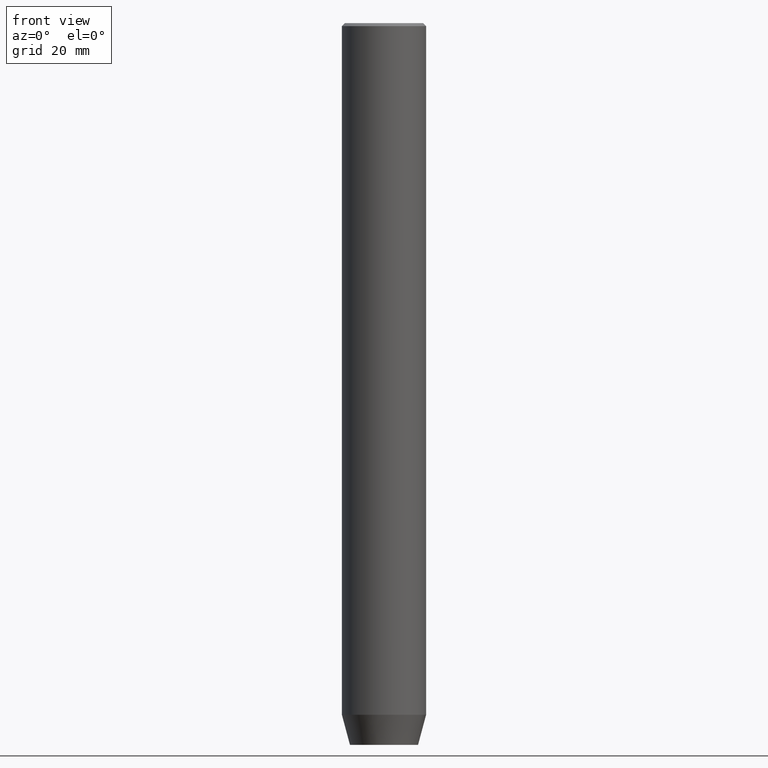
[diagram: clean part render]
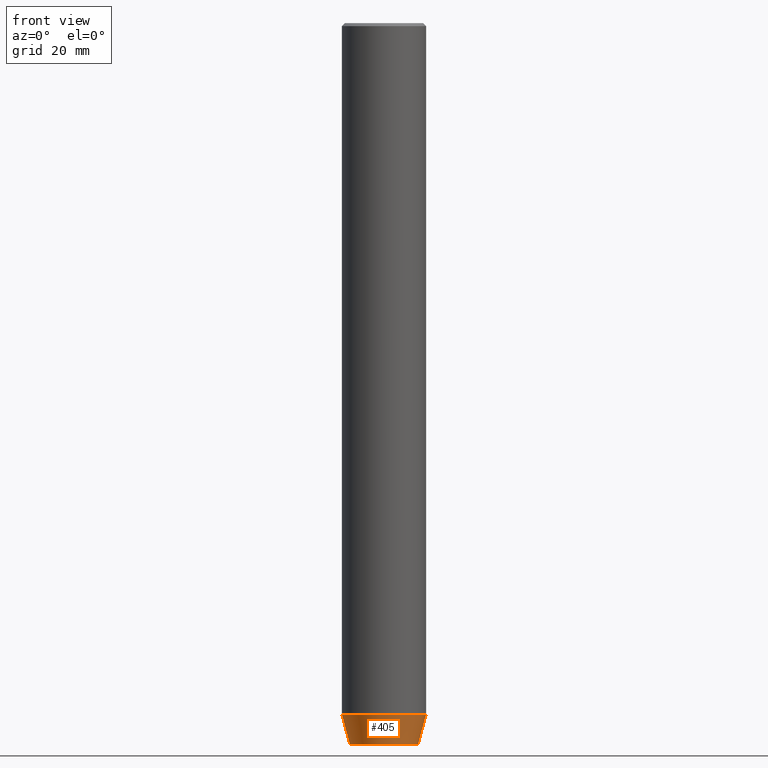
[diagram: same view with one face highlighted and labeled with its STEP entity id]
A machine part, front view. The second image highlights one B-rep face of the part: STEP entity #405.
In plain terms, the highlighted conical surface has half-angle 15 deg.
Its self-contained STEP definition (entity closure, byte-faithful):
#17 = CARTESIAN_POINT ( 'NONE',  ( 5.660254037844382857, 0.000000000000000000, -120.0000000000000000 ) ) ;
#36 = VERTEX_POINT ( 'NONE', #515 ) ;
#38 = VERTEX_POINT ( 'NONE', #381 ) ;
#44 = ORIENTED_EDGE ( 'NONE', *, *, #180, .F. ) ;
#45 = DIRECTION ( 'NONE',  ( -0.2588190451025211836, 3.169619151431770488E-17, 0.9659258262890680902 ) ) ;
#89 = VERTEX_POINT ( 'NONE', #17 ) ;
#108 = CONICAL_SURFACE ( 'NONE', #574, 7.000000000000000000, 0.2617993877991499074 ) ;
#134 = CARTESIAN_POINT ( 'NONE',  ( -7.000000000000000000, 8.572527594031473190E-16, -114.9999999999999858 ) ) ;
#141 = ORIENTED_EDGE ( 'NONE', *, *, #251, .T. ) ;
#142 = EDGE_CURVE ( 'NONE', #36, #89, #554, .T. ) ;
#152 = DIRECTION ( 'NONE',  ( 1.000000000000000000, 0.000000000000000000, 0.000000000000000000 ) ) ;
#176 = LINE ( 'NONE', #134, #276 ) ;
#180 = EDGE_CURVE ( 'NONE', #516, #38, #517, .T. ) ;
#210 = AXIS2_PLACEMENT_3D ( 'NONE', #474, #428, #152 ) ;
#251 = EDGE_CURVE ( 'NONE', #89, #38, #343, .T. ) ;
#276 = VECTOR ( 'NONE', #45, 1000.000000000000114 ) ;
#279 = EDGE_LOOP ( 'NONE', ( #420, #310, #141, #44 ) ) ;
#310 = ORIENTED_EDGE ( 'NONE', *, *, #142, .T. ) ;
#343 = LINE ( 'NONE', #386, #413 ) ;
#372 = DIRECTION ( 'NONE',  ( 1.000000000000000000, 0.000000000000000000, 0.000000000000000000 ) ) ;
#381 = CARTESIAN_POINT ( 'NONE',  ( 7.000000000000000000, 0.000000000000000000, -114.9999999999999858 ) ) ;
#386 = CARTESIAN_POINT ( 'NONE',  ( 7.000000000000000000, 0.000000000000000000, -114.9999999999999858 ) ) ;
#405 = ADVANCED_FACE ( 'NONE', ( #495 ), #108, .T. ) ;
#413 = VECTOR ( 'NONE', #566, 1000.000000000000114 ) ;
#420 = ORIENTED_EDGE ( 'NONE', *, *, #530, .F. ) ;
#428 = DIRECTION ( 'NONE',  ( -0.000000000000000000, -0.000000000000000000, 1.000000000000000000 ) ) ;
#455 = DIRECTION ( 'NONE',  ( -0.000000000000000000, -0.000000000000000000, 1.000000000000000000 ) ) ;
#472 = DIRECTION ( 'NONE',  ( 1.000000000000000000, 0.000000000000000000, 0.000000000000000000 ) ) ;
#474 = CARTESIAN_POINT ( 'NONE',  ( 0.000000000000000000, 0.000000000000000000, -120.0000000000000000 ) ) ;
#495 = FACE_OUTER_BOUND ( 'NONE', #279, .T. ) ;
#496 = AXIS2_PLACEMENT_3D ( 'NONE', #557, #569, #472 ) ;
#503 = CARTESIAN_POINT ( 'NONE',  ( 0.000000000000000000, 0.000000000000000000, -114.9999999999999858 ) ) ;
#515 = CARTESIAN_POINT ( 'NONE',  ( -5.660254037844382857, 7.752169791919238770E-16, -120.0000000000000000 ) ) ;
#516 = VERTEX_POINT ( 'NONE', #543 ) ;
#517 = CIRCLE ( 'NONE', #496, 7.000000000000000000 ) ;
#530 = EDGE_CURVE ( 'NONE', #36, #516, #176, .T. ) ;
#543 = CARTESIAN_POINT ( 'NONE',  ( -7.000000000000000000, 8.572527594031473190E-16, -114.9999999999999858 ) ) ;
#554 = CIRCLE ( 'NONE', #210, 5.660254037844382857 ) ;
#557 = CARTESIAN_POINT ( 'NONE',  ( 0.000000000000000000, 0.000000000000000000, -114.9999999999999858 ) ) ;
#566 = DIRECTION ( 'NONE',  ( 0.2588190451025211836, 0.000000000000000000, 0.9659258262890680902 ) ) ;
#569 = DIRECTION ( 'NONE',  ( -0.000000000000000000, -0.000000000000000000, 1.000000000000000000 ) ) ;
#574 = AXIS2_PLACEMENT_3D ( 'NONE', #503, #455, #372 ) ;